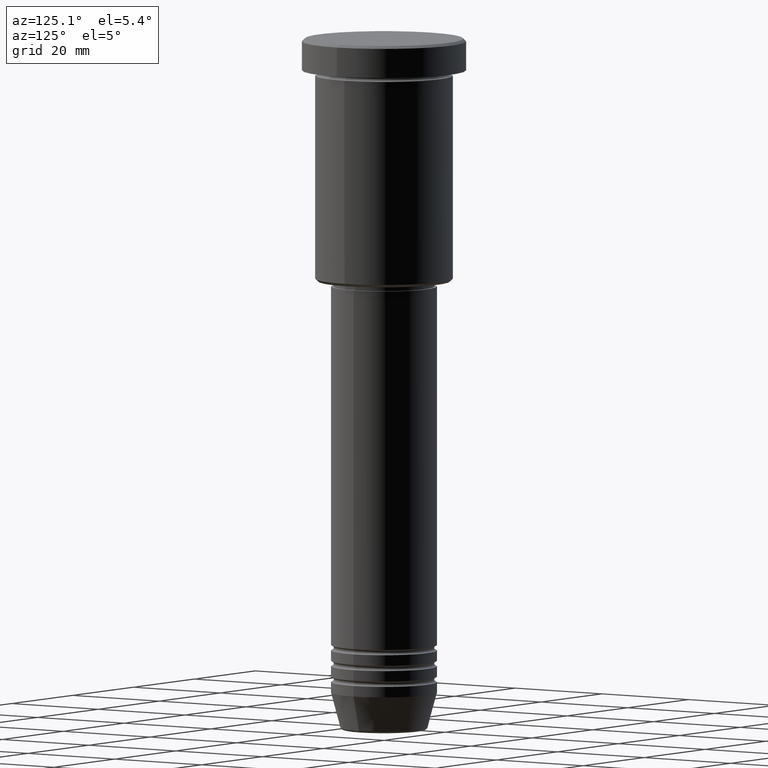
[diagram: clean part render]
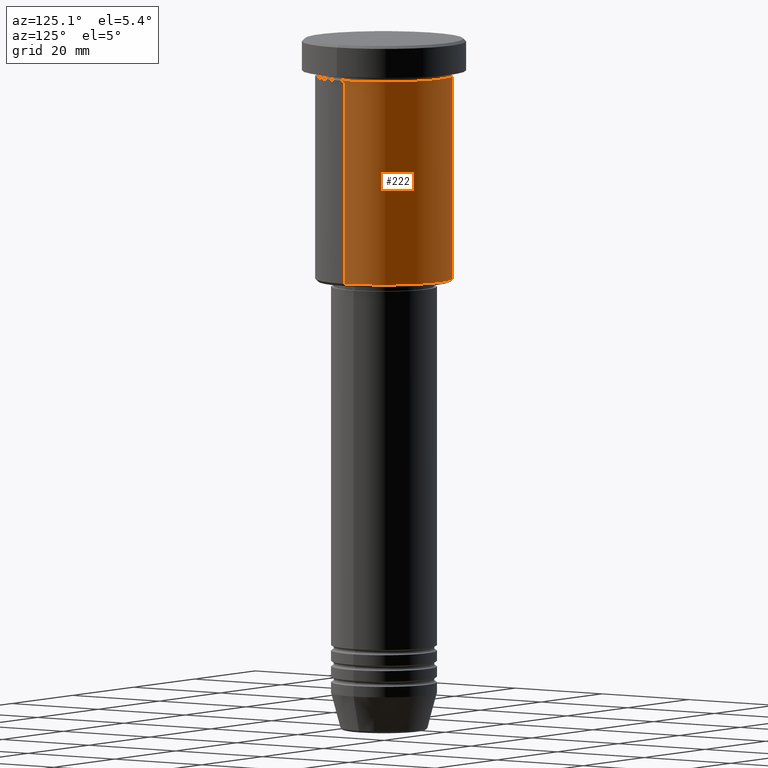
[diagram: same view with one face highlighted and labeled with its STEP entity id]
A machine part, auxiliary view. The second image highlights one B-rep face of the part: STEP entity #222.
In plain terms, the highlighted cylindrical surface (partial cylindrical patch) has radius 13 mm, axis along (-0, -0, 1).
Its self-contained STEP definition (entity closure, byte-faithful):
#15 = EDGE_CURVE ( 'NONE', #454, #713, #670, .T. ) ;
#61 = VERTEX_POINT ( 'NONE', #1044 ) ;
#72 = EDGE_LOOP ( 'NONE', ( #587, #495, #319, #391 ) ) ;
#115 = EDGE_CURVE ( 'NONE', #370, #61, #702, .T. ) ;
#133 = CARTESIAN_POINT ( 'NONE',  ( 13.00000000000000000, 0.000000000000000000, 0.000000000000000000 ) ) ;
#189 = DIRECTION ( 'NONE',  ( -0.000000000000000000, -0.000000000000000000, 1.000000000000000000 ) ) ;
#200 = CARTESIAN_POINT ( 'NONE',  ( -13.00000000000000000, 1.592040838891559095E-15, 0.000000000000000000 ) ) ;
#222 = ADVANCED_FACE ( 'NONE', ( #711 ), #1080, .T. ) ;
#279 = CARTESIAN_POINT ( 'NONE',  ( 13.00000000000000000, 0.000000000000000000, -6.999999999999995559 ) ) ;
#319 = ORIENTED_EDGE ( 'NONE', *, *, #115, .F. ) ;
#336 = AXIS2_PLACEMENT_3D ( 'NONE', #1083, #632, #355 ) ;
#340 = EDGE_CURVE ( 'NONE', #713, #61, #758, .T. ) ;
#355 = DIRECTION ( 'NONE',  ( 1.000000000000000000, 0.000000000000000000, 0.000000000000000000 ) ) ;
#370 = VERTEX_POINT ( 'NONE', #279 ) ;
#374 = CARTESIAN_POINT ( 'NONE',  ( -13.00000000000000000, 1.592040838891559095E-15, -45.49999999999997158 ) ) ;
#391 = ORIENTED_EDGE ( 'NONE', *, *, #989, .F. ) ;
#406 = VECTOR ( 'NONE', #1144, 1000.000000000000000 ) ;
#422 = CARTESIAN_POINT ( 'NONE',  ( 13.00000000000000000, 0.000000000000000000, -45.49999999999997158 ) ) ;
#439 = AXIS2_PLACEMENT_3D ( 'NONE', #824, #189, #841 ) ;
#454 = VERTEX_POINT ( 'NONE', #422 ) ;
#495 = ORIENTED_EDGE ( 'NONE', *, *, #340, .T. ) ;
#550 = CARTESIAN_POINT ( 'NONE',  ( 0.000000000000000000, 0.000000000000000000, -6.999999999999995559 ) ) ;
#583 = AXIS2_PLACEMENT_3D ( 'NONE', #550, #742, #1090 ) ;
#587 = ORIENTED_EDGE ( 'NONE', *, *, #15, .T. ) ;
#604 = VECTOR ( 'NONE', #926, 1000.000000000000000 ) ;
#632 = DIRECTION ( 'NONE',  ( -0.000000000000000000, -0.000000000000000000, 1.000000000000000000 ) ) ;
#670 = CIRCLE ( 'NONE', #439, 13.00000000000000000 ) ;
#702 = CIRCLE ( 'NONE', #583, 13.00000000000000000 ) ;
#711 = FACE_OUTER_BOUND ( 'NONE', #72, .T. ) ;
#713 = VERTEX_POINT ( 'NONE', #374 ) ;
#742 = DIRECTION ( 'NONE',  ( -0.000000000000000000, -0.000000000000000000, 1.000000000000000000 ) ) ;
#758 = LINE ( 'NONE', #200, #604 ) ;
#789 = LINE ( 'NONE', #133, #406 ) ;
#824 = CARTESIAN_POINT ( 'NONE',  ( 0.000000000000000000, 0.000000000000000000, -45.49999999999997158 ) ) ;
#841 = DIRECTION ( 'NONE',  ( -1.000000000000000000, 0.000000000000000000, 0.000000000000000000 ) ) ;
#926 = DIRECTION ( 'NONE',  ( -0.000000000000000000, -0.000000000000000000, 1.000000000000000000 ) ) ;
#989 = EDGE_CURVE ( 'NONE', #454, #370, #789, .T. ) ;
#1044 = CARTESIAN_POINT ( 'NONE',  ( -13.00000000000000000, 1.592040838891559095E-15, -6.999999999999995559 ) ) ;
#1080 = CYLINDRICAL_SURFACE ( 'NONE', #336, 13.00000000000000000 ) ;
#1083 = CARTESIAN_POINT ( 'NONE',  ( 0.000000000000000000, 0.000000000000000000, 0.000000000000000000 ) ) ;
#1090 = DIRECTION ( 'NONE',  ( 1.000000000000000000, 0.000000000000000000, 0.000000000000000000 ) ) ;
#1144 = DIRECTION ( 'NONE',  ( -0.000000000000000000, -0.000000000000000000, 1.000000000000000000 ) ) ;